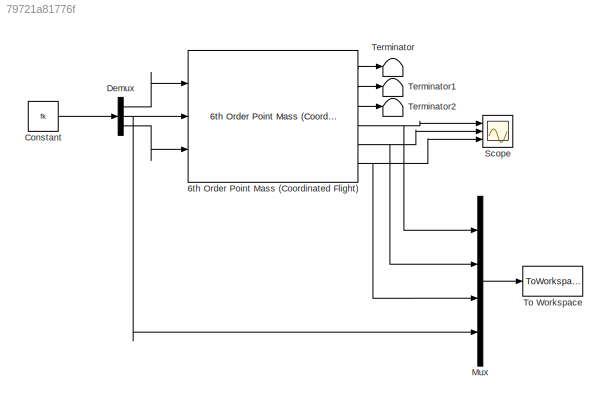
MODEL slx_79721a81776f
KIND model
CONFIG AbsTol = auto
CONFIG EnableMultiTasking = off
CONFIG FixedStep = 1
CONFIG MaxStep = auto
CONFIG MinStep = auto
CONFIG RelTol = 1e-3
CONFIG SampleTimeConstraint = Unconstrained
CONFIG Solver = FixedStepAuto
CONFIG SolverName = FixedStepAuto
CONFIG StartTime = 0.0
CONFIG StopTime = 9
BLOCK [Reference] 6th Order Point Mass (Coordinated Flight)  REF=aerolibptmass/6th Order Point Mass
(Coordinated Flight)
  Ports = [3, 6]
  SourceBlock = aerolibptmass/6th Order Point Mass\n(Coordinated Flight)
  SourceType = 6th Order Point Mass (Coordinated Flight)
BLOCK [Constant] Constant
  Value = fk
BLOCK [Demux] Demux
  DisplayOption = bar
  Outputs = 3
  Ports = [1, 3]
BLOCK [Mux] Mux
  DisplayOption = bar
  Ports = [4, 1]
BLOCK [Scope] Scope
  NumInputPorts = 3
  Ports = [3]
  ScopeSpecificationString = Simulink.scopes.TimeScopeBlockCfg('CurrentConfiguration', extmgr.ConfigurationSet(extmgr.Configuration('Core','General UI',true),extmgr.Configuration('Core','Source UI',true),extmgr.Configuration('Sources','WiredSimulink',true,'DataLoggingLimitDataPoints',true,'DataLoggingSaveFormat','Array','DataLoggingDecimation','1','DataLoggingDecimateData',true),extmgr.Configuration('Visuals','Time Domain',tr...<+1667ch>
BLOCK [Terminator] Terminator
BLOCK [Terminator] Terminator1
BLOCK [Terminator] Terminator2
BLOCK [ToWorkspace] To Workspace
  FixptAsFi = on
  MaxDataPoints = inf
  Ports = [1]
  SampleTime = -1
  Save2DSignal = 3-D array (concatenate along third dimension)
  SaveFormat = Timeseries
  VariableName = traj
LINE 6th Order Point Mass (Coordinated Flight):1 -> Terminator:1
LINE 6th Order Point Mass (Coordinated Flight):2 -> Terminator1:1
LINE 6th Order Point Mass (Coordinated Flight):3 -> Terminator2:1
NET 6th Order Point Mass (Coordinated Flight):4 -> Mux:1, Scope:1
NET 6th Order Point Mass (Coordinated Flight):5 -> Mux:2, Scope:2
NET 6th Order Point Mass (Coordinated Flight):6 -> Mux:3, Scope:3
LINE Constant:1 -> Demux:1
LINE Demux:1 -> 6th Order Point Mass (Coordinated Flight):1
NET Demux:2 -> 6th Order Point Mass (Coordinated Flight):2, Mux:4
LINE Demux:3 -> 6th Order Point Mass (Coordinated Flight):3
LINE Mux:1 -> To Workspace:1
note: NET lines group one-source signal fan-out (src -> all destinations, sorted); 1:1 wires keep LINE
